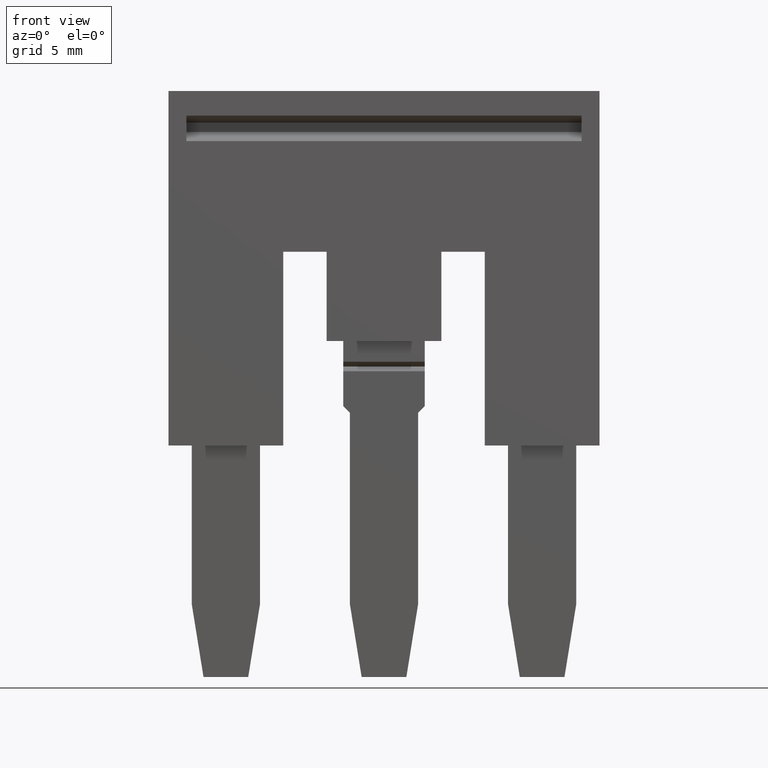
[diagram: clean part render]
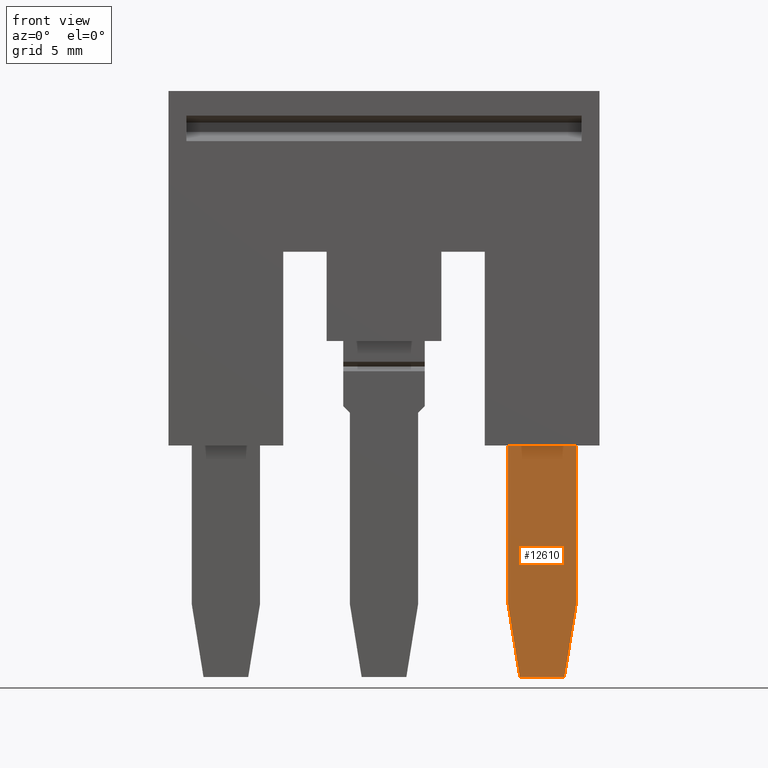
[diagram: same view with one face highlighted and labeled with its STEP entity id]
A machine part, front view. The second image highlights one B-rep face of the part: STEP entity #12610.
In plain terms, the highlighted planar face has unit normal (-0, -1, -0).
Its self-contained STEP definition (entity closure, byte-faithful):
#530=CARTESIAN_POINT('',(4.90716722169511,-23.0750000000004,47.074984));
#540=DIRECTION('',(1.22464679914735E-16,0.,-1.));
#550=VECTOR('',#540,1.);
#560=LINE('',#530,#550);
#570=CARTESIAN_POINT('',(4.90716722169511,-23.0750000000004,
47.3999999999964));
#580=VERTEX_POINT('',#570);
#590=CARTESIAN_POINT('',(4.90716722169511,-23.0750000000004,
44.7199999990351));
#600=VERTEX_POINT('',#590);
#610=EDGE_CURVE('',#580,#600,#560,.T.);
#7810=CARTESIAN_POINT('',(4.90716722169511,-12.305124,50.1404020769704))
;
#7820=DIRECTION('',(-1.38777878078145E-17,0.987219178105449,
0.159368423411924));
#7830=VECTOR('',#7820,1.);
#7840=LINE('',#7810,#7830);
#7850=CARTESIAN_POINT('',(4.90716722169511,-32.150000002286,
46.9368109480391));
#7860=VERTEX_POINT('',#7850);
#7870=CARTESIAN_POINT('',(4.90716722169511,-29.2807420565088,
47.3999999999964));
#7880=VERTEX_POINT('',#7870);
#7890=EDGE_CURVE('',#7860,#7880,#7840,.T.);
#8400=CARTESIAN_POINT('',(4.90716722169511,-29.2807420505003,
44.7199999990351));
#8410=VERTEX_POINT('',#8400);
#8440=CARTESIAN_POINT('',(4.90716722169511,-12.305124,44.7199999990351))
;
#8450=DIRECTION('',(-1.84889274661175E-32,1.,9.11930314421364E-17));
#8460=VECTOR('',#8450,1.);
#8470=LINE('',#8440,#8460);
#8480=EDGE_CURVE('',#8410,#600,#8470,.T.);
#12310=CARTESIAN_POINT('',(4.90716722169511,-28.7086780250799,
40.7323702740736));
#12320=DIRECTION('',(1.,0.,1.22464679914735E-16));
#12330=DIRECTION('',(0.,-1.,0.));
#12340=AXIS2_PLACEMENT_3D('',#12310,#12320,#12330);
#12350=PLANE('',#12340);
#12360=ORIENTED_EDGE('',*,*,#7890,.F.);
#12370=CARTESIAN_POINT('',(4.90716722169511,-12.305124,47.3999999999964)
);
#12380=DIRECTION('',(-1.23259516440783E-32,-1.,6.12323399573677E-17));
#12390=VECTOR('',#12380,1.);
#12400=LINE('',#12370,#12390);
#12410=EDGE_CURVE('',#580,#7880,#12400,.T.);
#12420=ORIENTED_EDGE('',*,*,#12410,.T.);
#12430=ORIENTED_EDGE('',*,*,#610,.F.);
#12440=ORIENTED_EDGE('',*,*,#8480,.T.);
#12450=CARTESIAN_POINT('',(4.90716722169511,-12.305124,41.979597923031))
;
#12460=DIRECTION('',(-1.38777878078145E-17,-0.987219178105449,
0.159368423411924));
#12470=VECTOR('',#12460,1.);
#12480=LINE('',#12450,#12470);
#12490=CARTESIAN_POINT('',(4.90716722169511,-32.1500000022863,
45.1831890519623));
#12500=VERTEX_POINT('',#12490);
#12510=EDGE_CURVE('',#8410,#12500,#12480,.T.);
#12520=ORIENTED_EDGE('',*,*,#12510,.F.);
#12530=CARTESIAN_POINT('',(4.90716722169511,-32.150000002286,47.074984))
;
#12540=DIRECTION('',(1.22464679914735E-16,-1.44960956186225E-13,-1.));
#12550=VECTOR('',#12540,1.);
#12560=LINE('',#12530,#12550);
#12570=EDGE_CURVE('',#7860,#12500,#12560,.T.);
#12580=ORIENTED_EDGE('',*,*,#12570,.T.);
#12590=EDGE_LOOP('',(#12580,#12520,#12440,#12430,#12420,#12360));
#12600=FACE_OUTER_BOUND('',#12590,.T.);
#12610=ADVANCED_FACE('',(#12600),#12350,.T.);